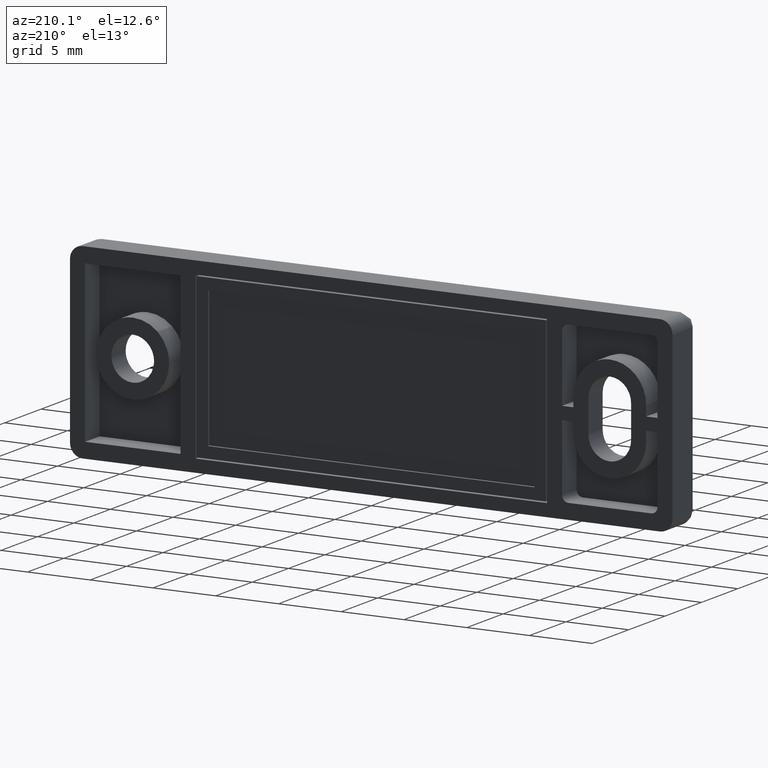
[diagram: clean part render]
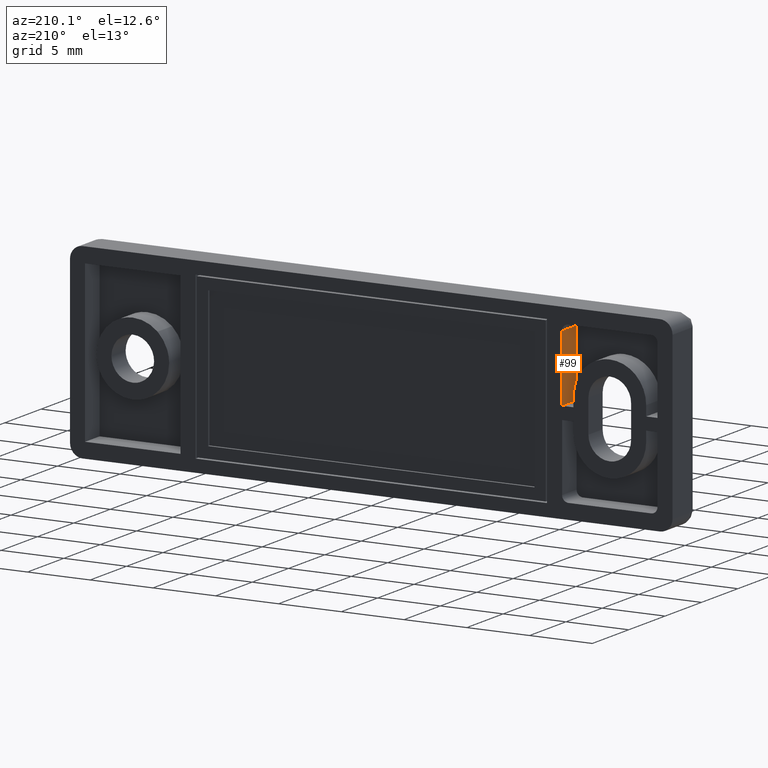
[diagram: same view with one face highlighted and labeled with its STEP entity id]
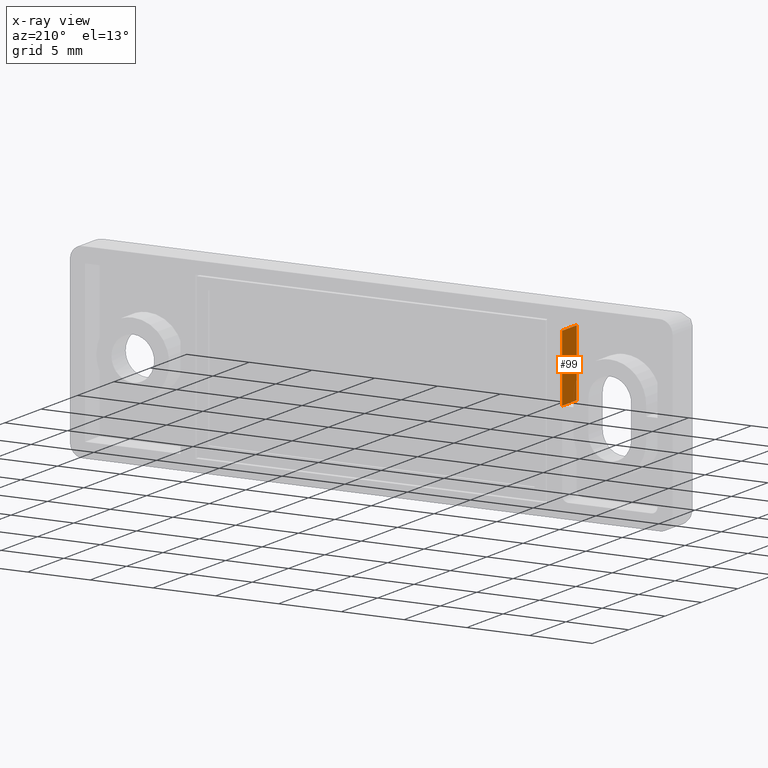
[diagram: x-ray of the same camera — body ghosted, the highlighted face saturated]
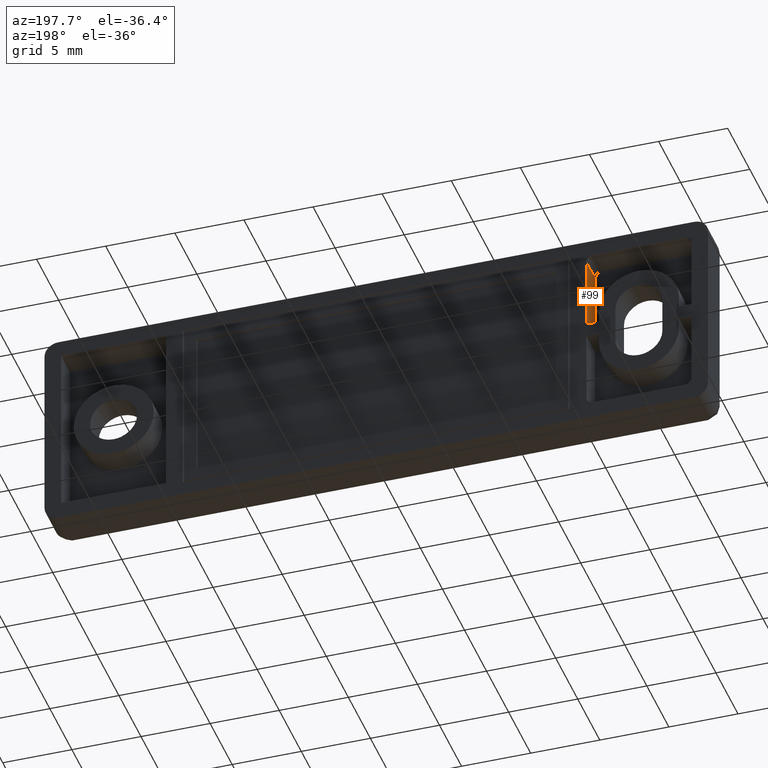
[diagram: same view with one face highlighted and labeled with its STEP entity id]
A machine part, auxiliary view. The second image highlights one B-rep face of the part: STEP entity #99.
The next image is the same camera in x-ray: the body ghosted, the highlighted face saturated — about 0% of this face is hidden behind the body in this view.
A second angle (auxiliary view) of the same face is appended — the face is thin or edge-on in the first view.
In plain terms, the highlighted planar face has unit normal (-1, 0, 0).
Its self-contained STEP definition (entity closure, byte-faithful):
#99=ADVANCED_FACE('',(#393),#392,.T.);
#392=PLANE('',#1056);
#393=FACE_OUTER_BOUND('',#1057,.T.);
#1053=CARTESIAN_POINT('',(-1.52000000000E+01,-2.20000000000E+00,-3.00000000001E-02));
#1054=DIRECTION('',(-1.00000000000E+00,0.00000000000E+00,0.00000000000E+00));
#1055=DIRECTION('',(0.00000000000E+00,0.00000000000E+00,1.00000000000E+00));
#1056=AXIS2_PLACEMENT_3D('',#1053,#1054,#1055);
#1057=EDGE_LOOP('',(#1532,#1533,#1534,#1535));
#1532=ORIENTED_EDGE('',*,*,#1932,.F.);
#1533=ORIENTED_EDGE('',*,*,#1933,.F.);
#1534=ORIENTED_EDGE('',*,*,#1934,.T.);
#1535=ORIENTED_EDGE('',*,*,#1930,.T.);
#1930=EDGE_CURVE('',#2712,#2705,#2713,.T.);
#1932=EDGE_CURVE('',#2725,#2705,#2726,.T.);
#1933=EDGE_CURVE('',#2732,#2725,#2733,.T.);
#1934=EDGE_CURVE('',#2732,#2712,#2739,.T.);
#2705=VERTEX_POINT('',#4081);
#2712=VERTEX_POINT('',#4090);
#2713=LINE('',#4091,#4092);
#2725=VERTEX_POINT('',#4102);
#2726=LINE('',#4103,#4104);
#2732=VERTEX_POINT('',#4106);
#2733=LINE('',#4107,#4108);
#2739=LINE('',#4110,#4111);
#4081=CARTESIAN_POINT('',(-1.52000000000E+01,0.00000000000E+00,5.80000000000E+00));
#4090=CARTESIAN_POINT('',(-1.52000000000E+01,-2.00000000000E+00,5.80000000000E+00));
#4091=CARTESIAN_POINT('',(-1.52000000000E+01,-2.00000000000E+00,5.80000000000E+00));
#4092=VECTOR('',#4093,2.00000000000E+00);
#4093=DIRECTION('',(0.00000000000E+00,1.00000000000E+00,0.00000000000E+00));
#4102=CARTESIAN_POINT('',(-1.52000000000E+01,0.00000000000E+00,5.00000000000E-01));
#4103=CARTESIAN_POINT('',(-1.52000000000E+01,0.00000000000E+00,5.00000000000E-01));
#4104=VECTOR('',#4105,5.30000000000E+00);
#4105=DIRECTION('',(0.00000000000E+00,0.00000000000E+00,1.00000000000E+00));
#4106=CARTESIAN_POINT('',(-1.52000000000E+01,-2.00000000000E+00,5.00000000000E-01));
#4107=CARTESIAN_POINT('',(-1.52000000000E+01,-2.00000000000E+00,5.00000000000E-01));
#4108=VECTOR('',#4109,2.00000000000E+00);
#4109=DIRECTION('',(0.00000000000E+00,1.00000000000E+00,0.00000000000E+00));
#4110=CARTESIAN_POINT('',(-1.52000000000E+01,-2.00000000000E+00,5.00000000000E-01));
#4111=VECTOR('',#4112,5.30000000000E+00);
#4112=DIRECTION('',(0.00000000000E+00,0.00000000000E+00,1.00000000000E+00));